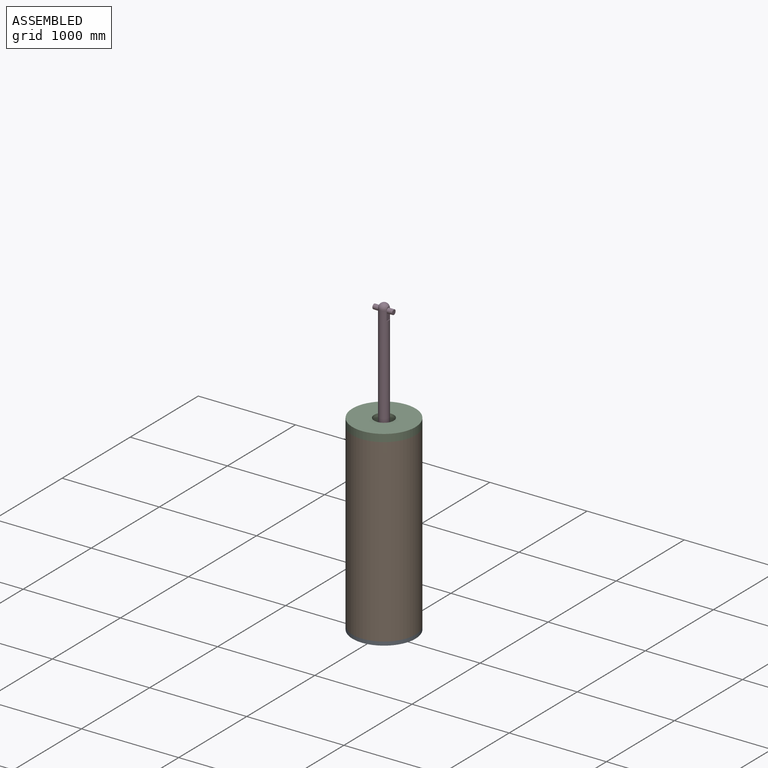
[diagram: assembled view]
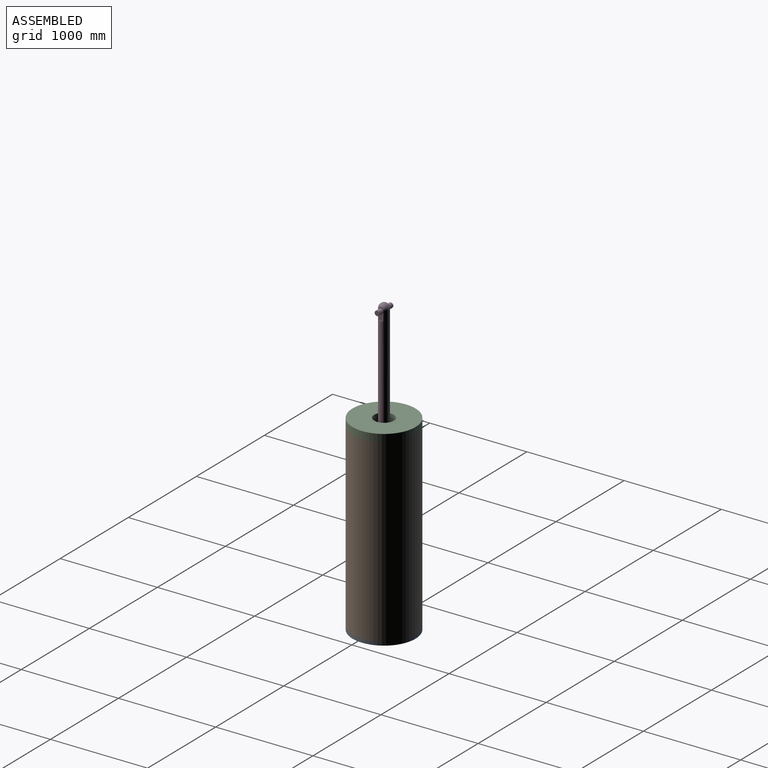
[diagram: assembled view, second angle]
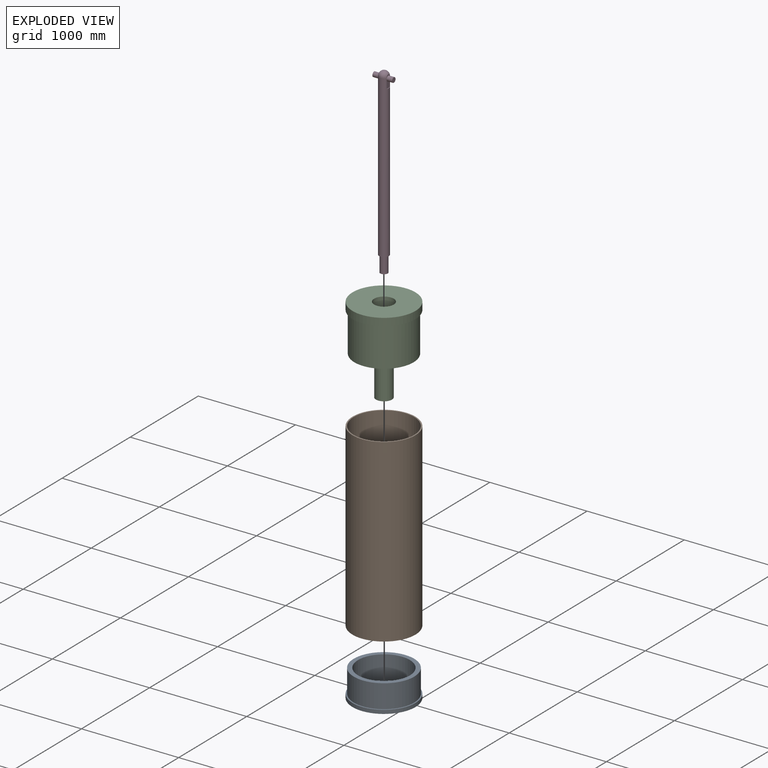
[diagram: exploded view]
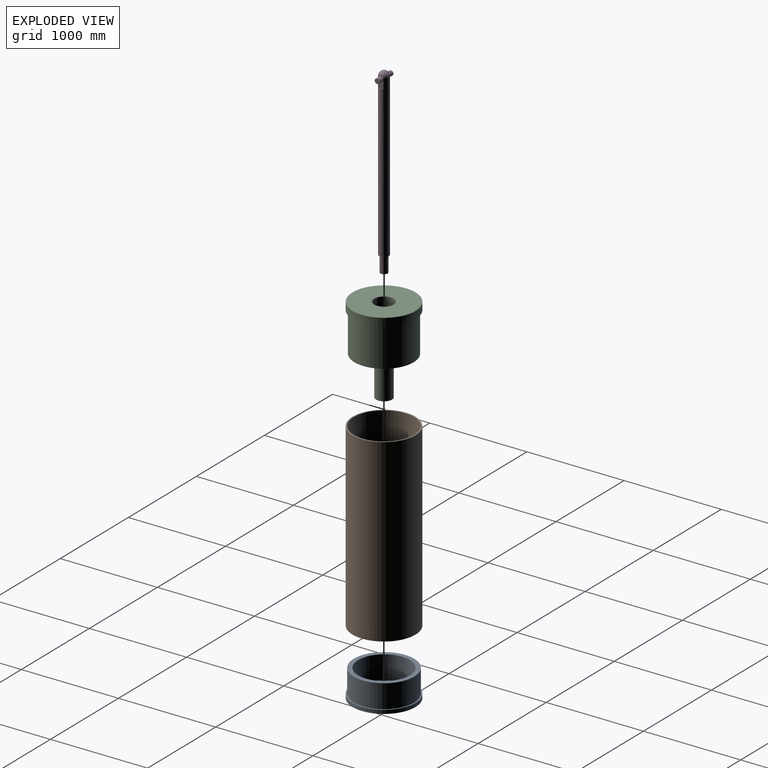
[diagram: exploded view, second angle]
ASSEMBLY  parts=4 mates=3
PART A: 7 faces, bbox 647.7x647.7x279.4 mm
  f0: cylinder r=323.85mm len=647.7mm, axis (0,0,-1), area 77526.2mm2, adj f1,f2
  f1: plane 647.7x647.7mm, normal (0,0,1), area 25335.4mm2, adj f0,f4
  f2: plane 647.7x647.7mm, normal (0,0,-1), area 329486.5mm2, adj f0
  f3: cylinder r=266.7mm len=533.4mm, axis (0,0,-1), area 404352.6mm2, adj f5,f6
  f4: cylinder r=311.15mm len=622.3mm, axis (0,0,-1), area 471744.7mm2, adj f1,f5
  f5: plane 622.3x622.3mm, normal (0,0,1), area 80693.2mm2, adj f3,f4
  f6: plane 533.4x533.4mm, normal (0,0,1), area 223458mm2, adj f3
PART B: 4 faces, bbox 647.7x647.7x1854.2 mm
  f0: cylinder r=311.15mm len=1854.2mm, axis (0,0,-1), area 3624985.3mm2, adj f2,f3
  f1: cylinder r=323.85mm len=1854.2mm, axis (0,0,-1), area 3772943.9mm2, adj f2,f3
  f2: plane 647.7x647.7mm, normal (0,0,1), area 25335.4mm2, adj f0,f1
  f3: plane 647.7x647.7mm, normal (0,0,-1), area 25335.4mm2, adj f0,f1
PART C: 17 faces, bbox 647.7x647.7x889 mm
  f0: cylinder r=323.85mm len=647.7mm, axis (0,0,-1), area 155052.5mm2, adj f1,f2
  f1: plane 647.7x647.7mm, normal (0,0,1), area 37623mm2, adj f0,f4
  f2: plane 647.7x647.7mm, normal (0,0,-1), area 297057.3mm2, adj f0,f11
  f3: cylinder r=266.7mm len=533.4mm, axis (0,0,-1), area 681014.9mm2, adj f5,f6
  f4: cylinder r=304.8mm len=609.6mm, axis (0,0,-1), area 778302.7mm2, adj f1,f5
  f5: plane 609.6x609.6mm, normal (0,0,1), area 68405.5mm2, adj f3,f4
  f6: plane 533.4x533.4mm, normal (0,0,1), area 162146.4mm2, adj f3,f7
  f7: cylinder r=139.7mm len=406.4mm, axis (0,0,-1), area 356722.1mm2, adj f6,f8
  f8: plane 279.4x279.4mm, normal (0,0,1), area 39903.2mm2, adj f7,f9
  f9: cylinder r=82.55mm len=406.4mm, axis (0,0,-1), area 210790.3mm2, adj f8,f10
  f10: plane 165.1x165.1mm, normal (0,0,1), area 21408.4mm2, adj f9
  f11: cylinder r=101.6mm len=401.32mm, axis (0,0,-1), area 256191.3mm2, adj f2,f12
  f12: plane 203.2x203.2mm, normal (0,0,-1), area 24322mm2, adj f11,f13
  f13: cylinder r=50.8mm len=241.3mm, axis (0,0,-1), area 77019.5mm2, adj f12,f14
  f14: plane 101.6x101.6mm, normal (0,0,-1), area 3547mm2, adj f13,f15
  f15: cylinder r=38.1mm len=165.1mm, axis (0,0,-1), area 39523.2mm2, adj f14,f16
  f16: plane 76.2x76.2mm, normal (0,0,-1), area 4560.4mm2, adj f15
PART D: 15 faces, bbox 203.2x1879.6x101.6 mm
  f0: cylinder r=25.4mm len=57.61mm, axis (1,0,0), area 9128.5mm2, adj f1,f2,f4,f9
  f1: plane 50.8x50.8mm, normal (1,0,0), area 2026.8mm2, adj f0
  f2: plane 49.19x30.94mm, normal (1,0,0), area 568.2mm2, adj f0,f4,f12
  f3: plane 82.55x49.19mm, normal (-1,0,0), area 3366.2mm2, adj f4,f10,f14
  f4: cylinder r=50.8mm len=1663.7mm, axis (0,1,0), area 520564.8mm2, adj f0,f2,f3,f5,f8,f9,f10,f11
  f5: plane 101.6x101.6mm, normal (0,-1,0), area 3547mm2, adj f4,f6
  f6: cylinder r=38.1mm len=165.1mm, axis (0,1,0), area 39523.2mm2, adj f5,f7
  f7: plane 76.2x76.2mm, normal (0,-1,0), area 4560.4mm2, adj f6
  f8: plane 49.19x6.35mm, normal (0,1,0), area 211mm2, adj f4,f9
  f9: plane 82.55x49.19mm, normal (1,0,0), area 3366.2mm2, adj f0,f4,f8
  f10: plane 49.19x6.35mm, normal (0,1,0), area 211mm2, adj f3,f4
  f11: plane 49.19x30.94mm, normal (-1,0,0), area 568.2mm2, adj f4,f12,f14
  f12: sphere r=50.8mm, area 14187.8mm2, adj f2,f4,f11
  f13: plane 50.8x50.8mm, normal (-1,0,0), area 2026.8mm2, adj f14
  f14: cylinder r=25.4mm len=57.61mm, axis (1,0,0), area 9128.5mm2, adj f3,f4,f11,f13
PLACE A t=(-23503.89,1013.09,-3785.81)mm
PLACE B t=(-22284.69,1368.69,-3747.71)mm
PLACE C rot(axis=(1,0,0),180deg) t=(-24392.89,886.09,-1817.31)mm
PLACE D rot(axis=(1,0,0),90deg) t=(-15020.29,886.09,-3895.03)mm
MATE fastened A.f0 <-> B.f0  axis (0,0,1) through (4791.71,886.09,-3747.71)mm
MATE fastened D.f6 <-> C.f15  axis (0,0,-1) through (4791.71,886.09,-2625.03)mm
MATE fastened C.f4 <-> B.f0  axis (0,0,-1) through (4791.71,886.09,-1893.51)mm
